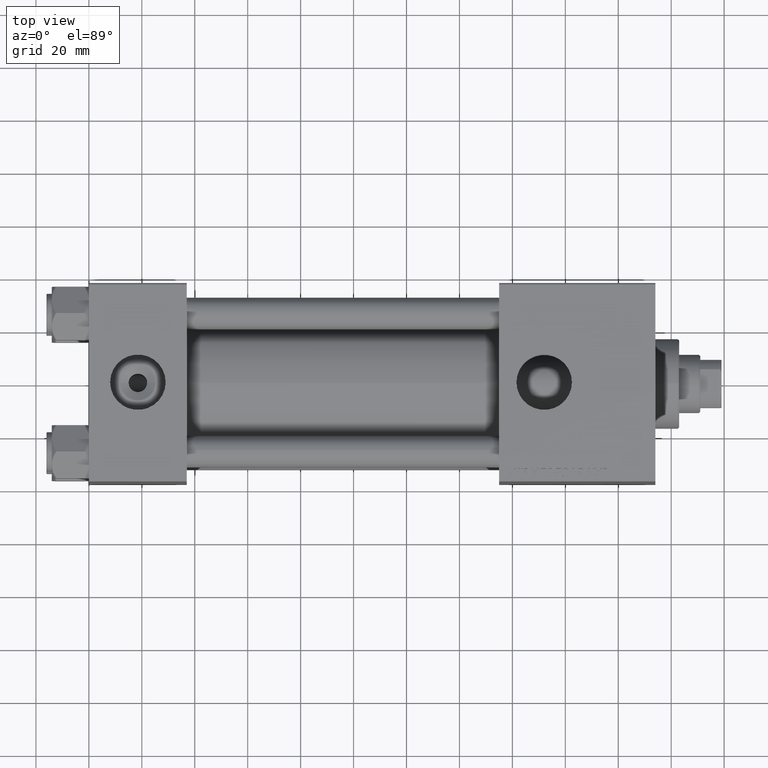
[diagram: clean part render]
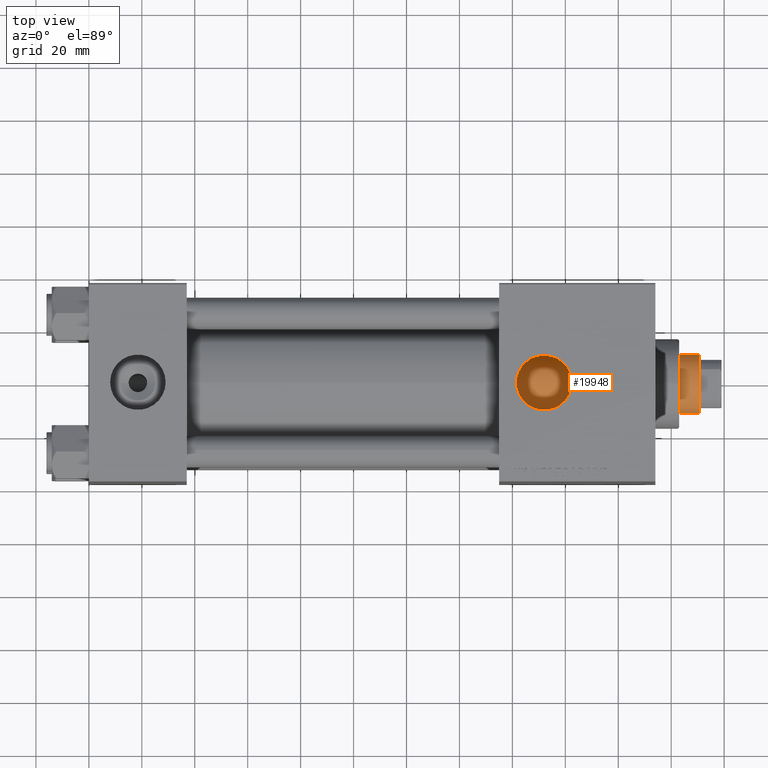
[diagram: same view with one face highlighted and labeled with its STEP entity id]
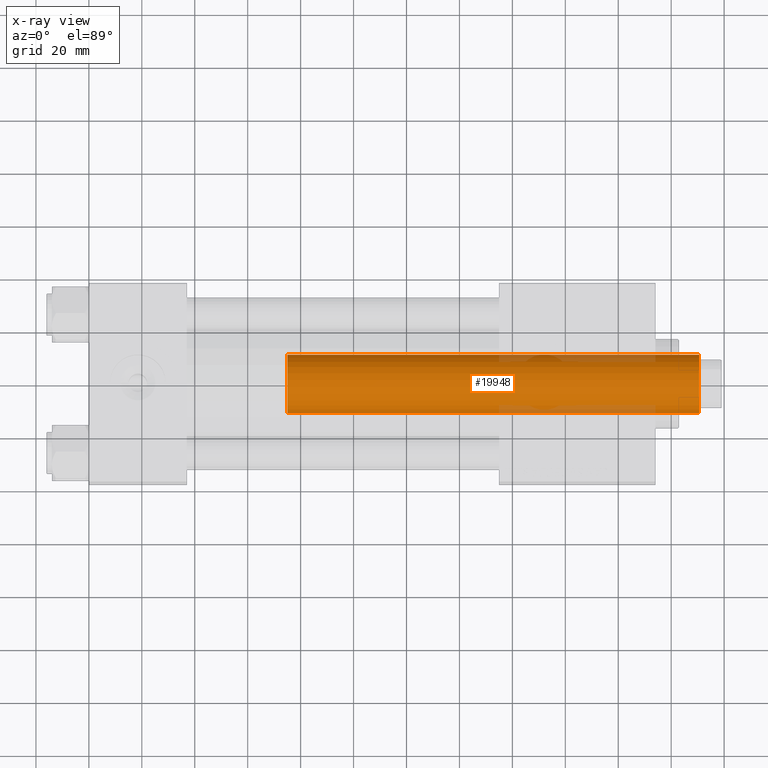
[diagram: x-ray of the same camera — body ghosted, the highlighted face saturated]
A machine part, top view. The second image highlights one B-rep face of the part: STEP entity #19948.
The next image is the same camera in x-ray: the body ghosted, the highlighted face saturated — about 9% of this face is hidden behind the body in this view.
In plain terms, the highlighted cylindrical surface (edge-blend (fillet) strip) has radius 11 mm, axis along (-1, 0, 0).
Its self-contained STEP definition (entity closure, byte-faithful):
#266 = VERTEX_POINT ( 'NONE', #2272 ) ;
#1875 = CIRCLE ( 'NONE', #36855, 11.00000000000000000 ) ;
#2272 = CARTESIAN_POINT ( 'NONE',  ( -11.00000000000000000, 0.000000000000000000, 193.5000000000000000 ) ) ;
#6409 = CARTESIAN_POINT ( 'NONE',  ( 11.00000000000000000, 1.347111479062088405E-15, 38.00000000000000000 ) ) ;
#6543 = DIRECTION ( 'NONE',  ( 0.000000000000000000, 0.000000000000000000, 1.000000000000000000 ) ) ;
#6629 = DIRECTION ( 'NONE',  ( -0.000000000000000000, -0.000000000000000000, -1.000000000000000000 ) ) ;
#9024 = CARTESIAN_POINT ( 'NONE',  ( 11.00000000000000000, 1.347111479062088405E-15, 193.5000000000000000 ) ) ;
#9415 = LINE ( 'NONE', #33093, #39460 ) ;
#14451 = CARTESIAN_POINT ( 'NONE',  ( 0.000000000000000000, 0.000000000000000000, 38.00000000000000000 ) ) ;
#14768 = ORIENTED_EDGE ( 'NONE', *, *, #30780, .F. ) ;
#15746 = CARTESIAN_POINT ( 'NONE',  ( -11.00000000000000000, 0.000000000000000000, 38.00000000000000000 ) ) ;
#16582 = VECTOR ( 'NONE', #24810, 1000.000000000000000 ) ;
#18614 = EDGE_CURVE ( 'NONE', #28197, #41314, #41578, .T. ) ;
#19948 = ADVANCED_FACE ( 'NONE', ( #35440 ), #24232, .T. ) ;
#22090 = DIRECTION ( 'NONE',  ( 1.000000000000000000, 0.000000000000000000, 0.000000000000000000 ) ) ;
#22754 = EDGE_CURVE ( 'NONE', #24441, #266, #1875, .T. ) ;
#24232 = CYLINDRICAL_SURFACE ( 'NONE', #49781, 11.00000000000000000 ) ;
#24441 = VERTEX_POINT ( 'NONE', #9024 ) ;
#24577 = EDGE_CURVE ( 'NONE', #266, #28197, #33454, .T. ) ;
#24810 = DIRECTION ( 'NONE',  ( -0.000000000000000000, -0.000000000000000000, -1.000000000000000000 ) ) ;
#25791 = EDGE_LOOP ( 'NONE', ( #14768, #45058, #29444, #46620 ) ) ;
#28197 = VERTEX_POINT ( 'NONE', #15746 ) ;
#29053 = CARTESIAN_POINT ( 'NONE',  ( 0.000000000000000000, 0.000000000000000000, 194.0000000000000000 ) ) ;
#29444 = ORIENTED_EDGE ( 'NONE', *, *, #24577, .T. ) ;
#29546 = DIRECTION ( 'NONE',  ( -0.000000000000000000, -0.000000000000000000, -1.000000000000000000 ) ) ;
#29565 = DIRECTION ( 'NONE',  ( -1.000000000000000000, 0.000000000000000000, 0.000000000000000000 ) ) ;
#30780 = EDGE_CURVE ( 'NONE', #24441, #41314, #9415, .T. ) ;
#33093 = CARTESIAN_POINT ( 'NONE',  ( 11.00000000000000000, 1.347111479062088405E-15, 194.0000000000000000 ) ) ;
#33454 = LINE ( 'NONE', #47951, #16582 ) ;
#35440 = FACE_OUTER_BOUND ( 'NONE', #25791, .T. ) ;
#36855 = AXIS2_PLACEMENT_3D ( 'NONE', #41808, #49446, #45367 ) ;
#39460 = VECTOR ( 'NONE', #29546, 1000.000000000000000 ) ;
#41314 = VERTEX_POINT ( 'NONE', #6409 ) ;
#41578 = CIRCLE ( 'NONE', #42375, 11.00000000000000000 ) ;
#41808 = CARTESIAN_POINT ( 'NONE',  ( 0.000000000000000000, 0.000000000000000000, 193.5000000000000000 ) ) ;
#42375 = AXIS2_PLACEMENT_3D ( 'NONE', #14451, #6543, #22090 ) ;
#45058 = ORIENTED_EDGE ( 'NONE', *, *, #22754, .T. ) ;
#45367 = DIRECTION ( 'NONE',  ( 1.000000000000000000, 0.000000000000000000, 0.000000000000000000 ) ) ;
#46620 = ORIENTED_EDGE ( 'NONE', *, *, #18614, .T. ) ;
#47951 = CARTESIAN_POINT ( 'NONE',  ( -11.00000000000000000, 0.000000000000000000, 194.0000000000000000 ) ) ;
#49446 = DIRECTION ( 'NONE',  ( 0.000000000000000000, 0.000000000000000000, -1.000000000000000000 ) ) ;
#49781 = AXIS2_PLACEMENT_3D ( 'NONE', #29053, #6629, #29565 ) ;